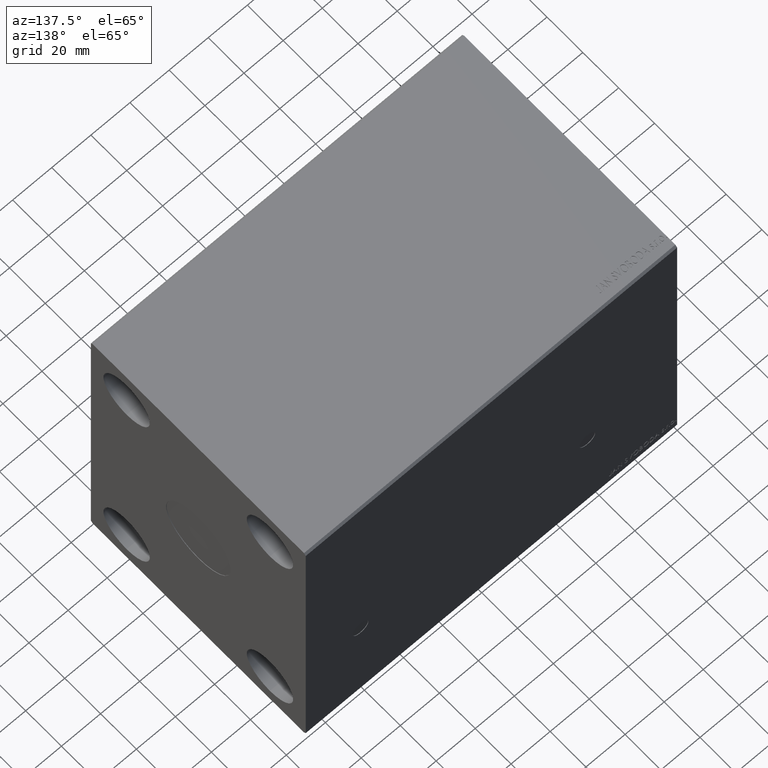
[diagram: clean part render]
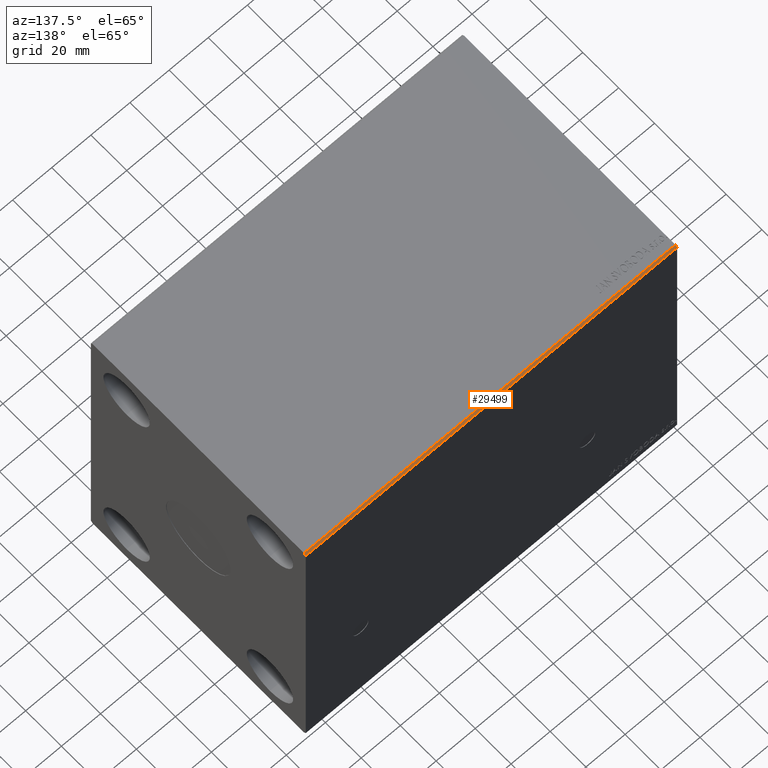
[diagram: same view with one face highlighted and labeled with its STEP entity id]
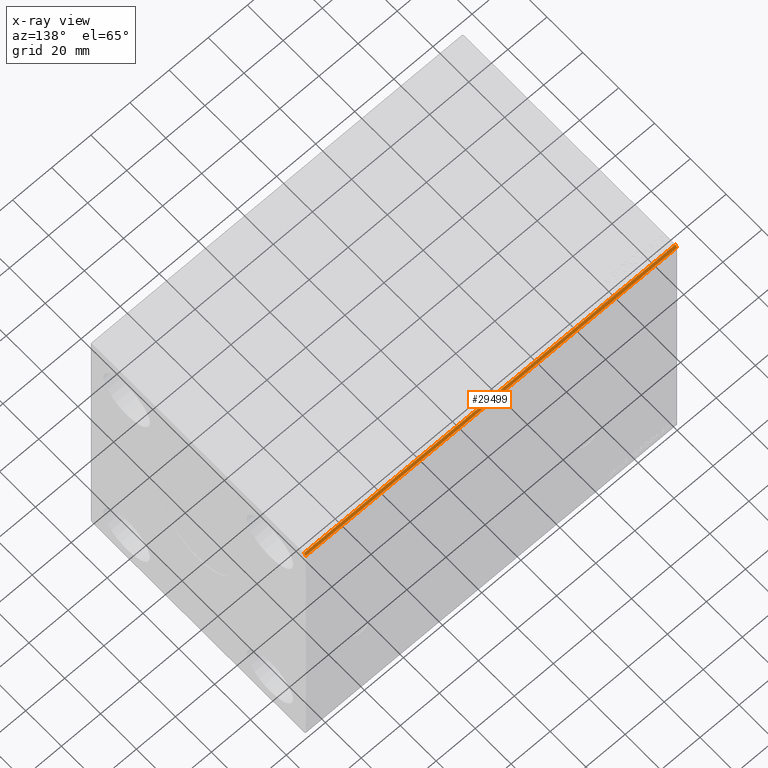
[diagram: x-ray of the same camera — body ghosted, the highlighted face saturated]
A machine part, auxiliary view. The second image highlights one B-rep face of the part: STEP entity #29499.
The next image is the same camera in x-ray: the body ghosted, the highlighted face saturated — about 0% of this face is hidden behind the body in this view.
In plain terms, the highlighted planar face has unit normal (0, -0.7071, -0.7071).
Its self-contained STEP definition (entity closure, byte-faithful):
#2746 = EDGE_CURVE ( 'NONE', #23077, #5207, #26099, .T. ) ;
#3032 = EDGE_LOOP ( 'NONE', ( #17236, #4105, #17549, #11183 ) ) ;
#3544 = AXIS2_PLACEMENT_3D ( 'NONE', #37325, #24018, #27252 ) ;
#3873 = VECTOR ( 'NONE', #22397, 1000.000000000000000 ) ;
#3887 = VECTOR ( 'NONE', #36793, 1000.000000000000114 ) ;
#4105 = ORIENTED_EDGE ( 'NONE', *, *, #13090, .F. ) ;
#5207 = VERTEX_POINT ( 'NONE', #10925 ) ;
#6170 = LINE ( 'NONE', #22733, #19047 ) ;
#7788 = VECTOR ( 'NONE', #33190, 1000.000000000000114 ) ;
#10925 = CARTESIAN_POINT ( 'NONE',  ( 0.000000000000000000, 58.99999999999998579, 80.00000000000000000 ) ) ;
#11024 = CARTESIAN_POINT ( 'NONE',  ( 190.0000000000000000, 59.99999999999998579, 79.00000000000000000 ) ) ;
#11183 = ORIENTED_EDGE ( 'NONE', *, *, #11366, .T. ) ;
#11366 = EDGE_CURVE ( 'NONE', #14902, #23077, #12739, .T. ) ;
#12739 = LINE ( 'NONE', #41508, #3873 ) ;
#13090 = EDGE_CURVE ( 'NONE', #15384, #5207, #6170, .T. ) ;
#14902 = VERTEX_POINT ( 'NONE', #11024 ) ;
#15384 = VERTEX_POINT ( 'NONE', #24244 ) ;
#17236 = ORIENTED_EDGE ( 'NONE', *, *, #2746, .T. ) ;
#17549 = ORIENTED_EDGE ( 'NONE', *, *, #35659, .F. ) ;
#19047 = VECTOR ( 'NONE', #38621, 1000.000000000000000 ) ;
#22397 = DIRECTION ( 'NONE',  ( -1.000000000000000000, -0.000000000000000000, -0.000000000000000000 ) ) ;
#22733 = CARTESIAN_POINT ( 'NONE',  ( 190.0000000000000000, 58.99999999999998579, 80.00000000000000000 ) ) ;
#23077 = VERTEX_POINT ( 'NONE', #38578 ) ;
#23695 = LINE ( 'NONE', #33798, #3887 ) ;
#24018 = DIRECTION ( 'NONE',  ( 0.000000000000000000, -0.7071067811865475727, -0.7071067811865475727 ) ) ;
#24244 = CARTESIAN_POINT ( 'NONE',  ( 190.0000000000000000, 58.99999999999998579, 80.00000000000000000 ) ) ;
#26099 = LINE ( 'NONE', #39201, #7788 ) ;
#27252 = DIRECTION ( 'NONE',  ( 0.000000000000000000, 0.7071067811865474617, -0.7071067811865474617 ) ) ;
#29499 = ADVANCED_FACE ( 'NONE', ( #40758 ), #37532, .F. ) ;
#33190 = DIRECTION ( 'NONE',  ( 0.000000000000000000, -0.7071067811865474617, 0.7071067811865474617 ) ) ;
#33798 = CARTESIAN_POINT ( 'NONE',  ( 190.0000000000000000, 59.99999999999998579, 79.00000000000000000 ) ) ;
#35659 = EDGE_CURVE ( 'NONE', #14902, #15384, #23695, .T. ) ;
#36793 = DIRECTION ( 'NONE',  ( 0.000000000000000000, -0.7071067811865474617, 0.7071067811865474617 ) ) ;
#37325 = CARTESIAN_POINT ( 'NONE',  ( 190.0000000000000000, 59.99999999999998579, 79.00000000000000000 ) ) ;
#37532 = PLANE ( 'NONE',  #3544 ) ;
#38578 = CARTESIAN_POINT ( 'NONE',  ( 0.000000000000000000, 59.99999999999998579, 79.00000000000000000 ) ) ;
#38621 = DIRECTION ( 'NONE',  ( -1.000000000000000000, -0.000000000000000000, -0.000000000000000000 ) ) ;
#39201 = CARTESIAN_POINT ( 'NONE',  ( 0.000000000000000000, 59.99999999999998579, 79.00000000000000000 ) ) ;
#40758 = FACE_OUTER_BOUND ( 'NONE', #3032, .T. ) ;
#41508 = CARTESIAN_POINT ( 'NONE',  ( 190.0000000000000000, 59.99999999999998579, 79.00000000000000000 ) ) ;